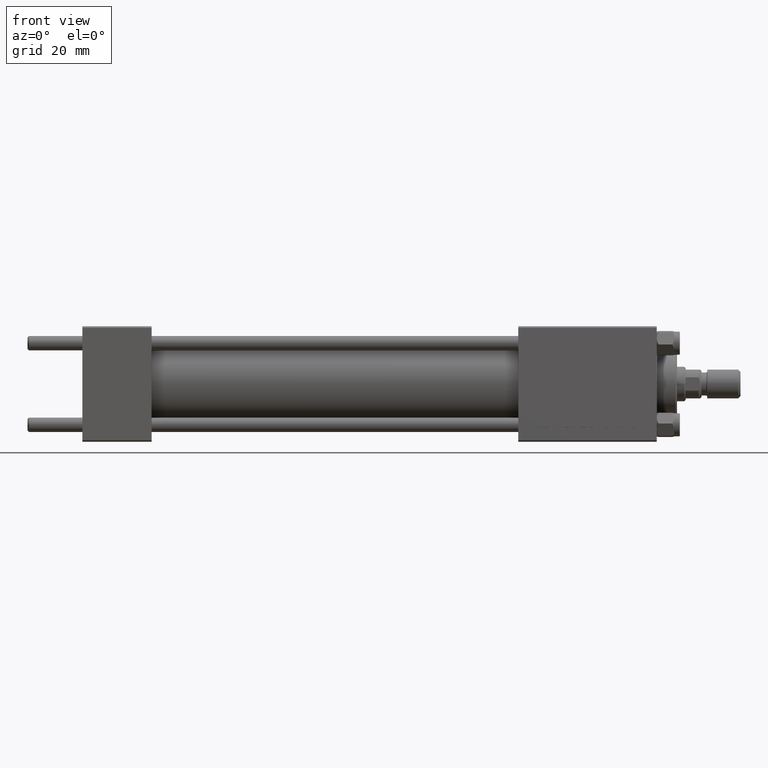
[diagram: clean part render]
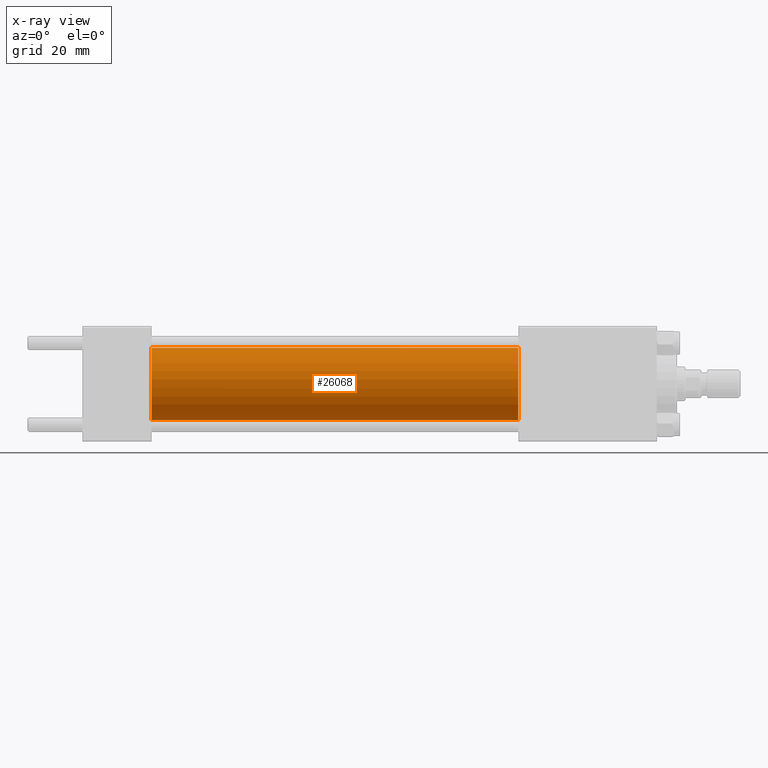
[diagram: x-ray — body ghosted, one internal face saturated and labeled with its STEP entity id]
A machine part, front view, then the same camera in x-ray: the body is ghosted and one INTERNAL B-rep face — a face not visible from any outside direction — is saturated and labeled: STEP entity #26068.
In plain terms, the highlighted cylindrical surface (edge-blend (fillet) strip) has radius 12.5 mm, axis along (-1, -0, -0).
Its self-contained STEP definition (entity closure, byte-faithful):
#1137 = CARTESIAN_POINT ( 'NONE',  ( 151.0000000000000000, 0.000000000000000000, 12.49999999999999645 ) ) ;
#1315 = DIRECTION ( 'NONE',  ( -1.000000000000000000, -0.000000000000000000, -0.000000000000000000 ) ) ;
#2771 = EDGE_CURVE ( 'NONE', #27130, #18288, #44688, .T. ) ;
#4378 = FACE_OUTER_BOUND ( 'NONE', #38114, .T. ) ;
#5902 = LINE ( 'NONE', #21432, #30260 ) ;
#11389 = CIRCLE ( 'NONE', #43143, 12.49999999999999645 ) ;
#12272 = DIRECTION ( 'NONE',  ( 0.000000000000000000, 0.000000000000000000, 1.000000000000000000 ) ) ;
#12758 = AXIS2_PLACEMENT_3D ( 'NONE', #35448, #47194, #12272 ) ;
#13179 = DIRECTION ( 'NONE',  ( 1.000000000000000000, 0.000000000000000000, 0.000000000000000000 ) ) ;
#14828 = ORIENTED_EDGE ( 'NONE', *, *, #36819, .F. ) ;
#17270 = DIRECTION ( 'NONE',  ( 1.000000000000000000, 0.000000000000000000, 0.000000000000000000 ) ) ;
#18288 = VERTEX_POINT ( 'NONE', #39502 ) ;
#19905 = CYLINDRICAL_SURFACE ( 'NONE', #12758, 12.49999999999999645 ) ;
#20230 = VERTEX_POINT ( 'NONE', #45428 ) ;
#20807 = CARTESIAN_POINT ( 'NONE',  ( 151.0000000000000000, 0.000000000000000000, 0.000000000000000000 ) ) ;
#21081 = CARTESIAN_POINT ( 'NONE',  ( 24.00000000000000000, 0.000000000000000000, 0.000000000000000000 ) ) ;
#21432 = CARTESIAN_POINT ( 'NONE',  ( 151.0000000000000000, 1.530808498934191127E-15, -12.49999999999999645 ) ) ;
#21897 = VECTOR ( 'NONE', #28887, 1000.000000000000000 ) ;
#25875 = VERTEX_POINT ( 'NONE', #38768 ) ;
#26068 = ADVANCED_FACE ( 'NONE', ( #4378 ), #19905, .F. ) ;
#27130 = VERTEX_POINT ( 'NONE', #30756 ) ;
#28887 = DIRECTION ( 'NONE',  ( -1.000000000000000000, -0.000000000000000000, -0.000000000000000000 ) ) ;
#30201 = ORIENTED_EDGE ( 'NONE', *, *, #2771, .F. ) ;
#30260 = VECTOR ( 'NONE', #1315, 1000.000000000000000 ) ;
#30756 = CARTESIAN_POINT ( 'NONE',  ( 151.0000000000000000, 0.000000000000000000, 12.49999999999999645 ) ) ;
#31417 = CIRCLE ( 'NONE', #37914, 12.49999999999999645 ) ;
#32284 = DIRECTION ( 'NONE',  ( 0.000000000000000000, 0.000000000000000000, -1.000000000000000000 ) ) ;
#32308 = ORIENTED_EDGE ( 'NONE', *, *, #42107, .T. ) ;
#35448 = CARTESIAN_POINT ( 'NONE',  ( 151.0000000000000000, 0.000000000000000000, 0.000000000000000000 ) ) ;
#35678 = ORIENTED_EDGE ( 'NONE', *, *, #47615, .T. ) ;
#36819 = EDGE_CURVE ( 'NONE', #18288, #25875, #11389, .T. ) ;
#37914 = AXIS2_PLACEMENT_3D ( 'NONE', #20807, #13179, #32284 ) ;
#38114 = EDGE_LOOP ( 'NONE', ( #35678, #32308, #14828, #30201 ) ) ;
#38768 = CARTESIAN_POINT ( 'NONE',  ( 24.00000000000000000, 1.530808498934191127E-15, -12.49999999999999645 ) ) ;
#39502 = CARTESIAN_POINT ( 'NONE',  ( 24.00000000000000000, 0.000000000000000000, 12.49999999999999645 ) ) ;
#42107 = EDGE_CURVE ( 'NONE', #20230, #25875, #5902, .T. ) ;
#43143 = AXIS2_PLACEMENT_3D ( 'NONE', #21081, #17270, #43770 ) ;
#43770 = DIRECTION ( 'NONE',  ( 0.000000000000000000, 0.000000000000000000, -1.000000000000000000 ) ) ;
#44688 = LINE ( 'NONE', #1137, #21897 ) ;
#45428 = CARTESIAN_POINT ( 'NONE',  ( 151.0000000000000000, 1.530808498934191127E-15, -12.49999999999999645 ) ) ;
#47194 = DIRECTION ( 'NONE',  ( -1.000000000000000000, -0.000000000000000000, -0.000000000000000000 ) ) ;
#47615 = EDGE_CURVE ( 'NONE', #27130, #20230, #31417, .T. ) ;